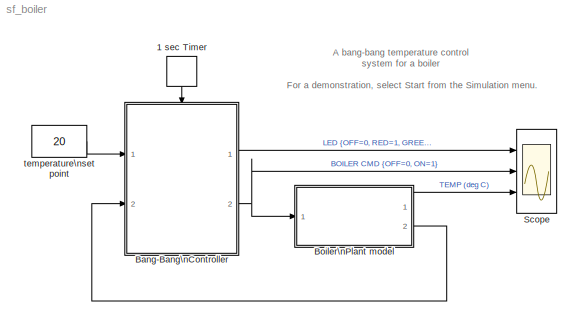
MODEL sf_boiler
KIND model
BLOCK [DiscretePulseGenerator] 1 sec Timer
  Amplitude = int8(1)
  Ports = [0, 1]
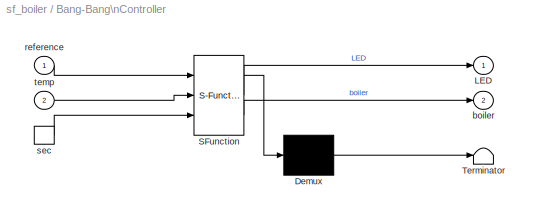
BLOCK [SubSystem] Bang-Bang\nController
  MaskDescription = Stateflow diagram
  MaskDisplay = plot(sf('Private','sfblk','xIcon'),sf('Private','sfblk','yIcon'));text(0.5,0,sf('Private', 'sfblk', 'tIcon'),'HorizontalAl','Center','VerticalAl','Bottom');
  MaskIconFrame = off
  MaskIconOpaque = off
  MaskIconRotate = none
  MaskIconUnits = autoscale
  MaskSelfModifiable = on
  MaskType = Stateflow
  MinAlgLoopOccurrences = off
  Ports = [2, 2, 0, 1]
  PropExecContextAcrossSSBoundary = on
  RTWSystemCode = Auto
  TreatAsAtomicUnit = on
BLOCK [Demux] Bang-Bang\nController/ Demux 
  Outputs = 1
  Ports = [1, 1]
BLOCK [S-Function] Bang-Bang\nController/ SFunction 
  FunctionName = sf_sfun
  PortCounts = [3 3]
  Ports = [3, 3]
  Tag = Stateflow S-Function sf_boiler 7
BLOCK [Terminator] Bang-Bang\nController/ Terminator 
BLOCK [Outport] Bang-Bang\nController/LED
  IconDisplay = Port number
BLOCK [Outport] Bang-Bang\nController/boiler
  IconDisplay = Port number
  Port = 2
BLOCK [Inport] Bang-Bang\nController/reference
  IconDisplay = Port number
  LatchInput = off
  Port = 1
BLOCK [TriggerPort] Bang-Bang\nController/sec
  Ports = [0, 1]
  ShowOutputPort = on
  ZeroCross = off
BLOCK [Inport] Bang-Bang\nController/temp
  IconDisplay = Port number
  LatchInput = off
  Port = 2
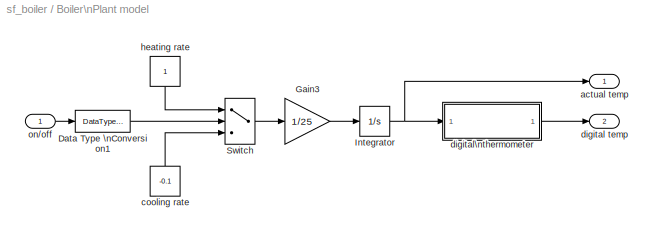
BLOCK [SubSystem] Boiler\nPlant model
  MinAlgLoopOccurrences = off
  Ports = [1, 2]
  PropExecContextAcrossSSBoundary = on
  RTWSystemCode = Auto
  TreatAsAtomicUnit = off
BLOCK [DataTypeConversion] Boiler\nPlant model/Data Type \nConversion1
  OutDataTypeMode = boolean
BLOCK [Gain] Boiler\nPlant model/Gain3
  Gain = 1/25
BLOCK [Integrator] Boiler\nPlant model/Integrator
  InitialCondition = 15
  Ports = [1, 1]
  ZeroCross = off
BLOCK [Switch] Boiler\nPlant model/Switch
  Threshold = .5
BLOCK [Outport] Boiler\nPlant model/actual temp
  IconDisplay = Port number
BLOCK [Constant] Boiler\nPlant model/cooling rate
  Value = -0.1
BLOCK [Outport] Boiler\nPlant model/digital temp
  IconDisplay = Port number
  Port = 2
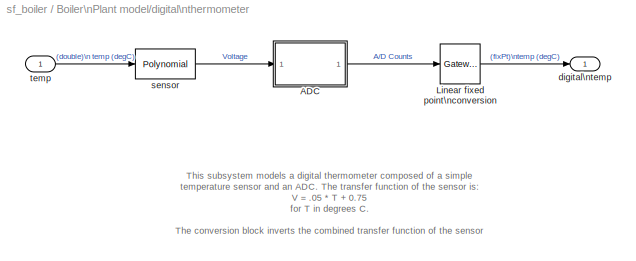
BLOCK [SubSystem] Boiler\nPlant model/digital\nthermometer
  MinAlgLoopOccurrences = off
  Ports = [1, 1]
  PropExecContextAcrossSSBoundary = on
  RTWSystemCode = Auto
  TreatAsAtomicUnit = off
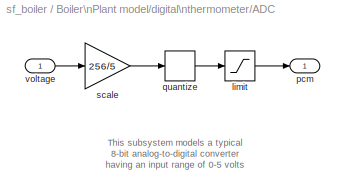
BLOCK [SubSystem] Boiler\nPlant model/digital\nthermometer/ADC
  MaskDisplay = fprintf('ADC\\n8-bit\\n0-5V');\n
  MaskIconFrame = on
  MaskIconOpaque = on
  MaskIconRotate = none
  MaskIconUnits = autoscale
  MinAlgLoopOccurrences = off
  Ports = [1, 1]
  PropExecContextAcrossSSBoundary = on
  RTWSystemCode = Auto
  ShowPortLabels = off
  TreatAsAtomicUnit = off
BLOCK [Saturate] Boiler\nPlant model/digital\nthermometer/ADC/limit
  LowerLimit = 0
  UpperLimit = 255
BLOCK [Outport] Boiler\nPlant model/digital\nthermometer/ADC/pcm
  IconDisplay = Port number
BLOCK [Quantizer] Boiler\nPlant model/digital\nthermometer/ADC/quantize
  QuantizationInterval = 1
BLOCK [Gain] Boiler\nPlant model/digital\nthermometer/ADC/scale
  Gain = 256/5
BLOCK [Inport] Boiler\nPlant model/digital\nthermometer/ADC/voltage
  IconDisplay = Port number
  LatchInput = off
  Port = 1
BLOCK [Reference] Boiler\nPlant model/digital\nthermometer/Linear fixed point\nconversion  REF=fixpt_lib_4/Data Type/Gateway In  (lib defined in mdl_ef9dacb0d1df)
  DoSatur = off
  InRealWorld = Stored Integer
  LockScale = off
  OutDataType = sfix(8)
  OutScaling = [ 5/256/0.05     -0.75/0.05 ]
  OutputDataTypeScalingMode = Specify via dialog
  Ports = [1, 1]
  RndMeth = Floor
  SourceBlock = fixpt_lib_4/Data Type/Gateway In
  SourceType = Fixed-Point Gateway In
BLOCK [Outport] Boiler\nPlant model/digital\nthermometer/digital\ntemp
  IconDisplay = Port number
BLOCK [Reference] Boiler\nPlant model/digital\nthermometer/sensor  REF=simulink/Math\nOperations/Polynomial
  Ports = [1, 1]
  SourceBlock = simulink/Math\nOperations/Polynomial
  SourceType = Polyval
  coefs = [ 0.05     0.75 ]
BLOCK [Inport] Boiler\nPlant model/digital\nthermometer/temp
  IconDisplay = Port number
  LatchInput = off
  Port = 1
BLOCK [Constant] Boiler\nPlant model/heating rate
BLOCK [Inport] Boiler\nPlant model/on//off
  IconDisplay = Port number
  LatchInput = off
  Port = 1
BLOCK [Scope] Scope
  DataFormat = StructureWithTime
  NumInputPorts = 3
  Ports = [3]
  YMax = 2~1~24
  YMin = 0~0~15
BLOCK [Constant] temperature\nset point
  OutDataTypeMode = Inherit via back propagation
  Value = 20
ANNOTATION (root): A bang-bang temperature control\nsystem for a boiler
ANNOTATION (root): For a demonstration, select Start from the Simulation menu.
ANNOTATION Boiler\nPlant model/digital\nthermometer: This subsystem models a digital thermometer composed of a simple \ntemperature sensor and an ADC. The transfer function of the sensor is:\nV = .05 * T + 0.75\nfor T in degrees C. \n\nThe conversion block inverts the combined transfer function of the sensor \nand ADC so that the output is an sfix(8) code representing T in degrees C.
ANNOTATION Boiler\nPlant model/digital\nthermometer/ADC: This subsystem models a typical \n8-bit analog-to-digital converter\nhaving an input range of 0-5 volts
LINE 1 sec Timer:1 -> Bang-Bang\nController:trigger
LINE Bang-Bang\nController/ Demux :1 -> Bang-Bang\nController/ Terminator :1
LINE Bang-Bang\nController/ SFunction :1 -> Bang-Bang\nController/ Demux :1
LINE Bang-Bang\nController/ SFunction :2 -> Bang-Bang\nController/LED:1
LINE Bang-Bang\nController/ SFunction :3 -> Bang-Bang\nController/boiler:1
LINE Bang-Bang\nController/reference:1 -> Bang-Bang\nController/ SFunction :1
LINE Bang-Bang\nController/sec:1 -> Bang-Bang\nController/ SFunction :3
LINE Bang-Bang\nController/temp:1 -> Bang-Bang\nController/ SFunction :2
LINE Bang-Bang\nController:1 -> Scope:1
NET Bang-Bang\nController:2 -> Boiler\nPlant model:1, Scope:2
LINE Boiler\nPlant model/Data Type \nConversion1:1 -> Boiler\nPlant model/Switch:2
LINE Boiler\nPlant model/Gain3:1 -> Boiler\nPlant model/Integrator:1
NET Boiler\nPlant model/Integrator:1 -> Boiler\nPlant model/actual temp:1, Boiler\nPlant model/digital\nthermometer:1
LINE Boiler\nPlant model/Switch:1 -> Boiler\nPlant model/Gain3:1
LINE Boiler\nPlant model/cooling rate:1 -> Boiler\nPlant model/Switch:3
LINE Boiler\nPlant model/digital\nthermometer/ADC/limit:1 -> Boiler\nPlant model/digital\nthermometer/ADC/pcm:1
LINE Boiler\nPlant model/digital\nthermometer/ADC/quantize:1 -> Boiler\nPlant model/digital\nthermometer/ADC/limit:1
LINE Boiler\nPlant model/digital\nthermometer/ADC/scale:1 -> Boiler\nPlant model/digital\nthermometer/ADC/quantize:1
LINE Boiler\nPlant model/digital\nthermometer/ADC/voltage:1 -> Boiler\nPlant model/digital\nthermometer/ADC/scale:1
LINE Boiler\nPlant model/digital\nthermometer/ADC:1 -> Boiler\nPlant model/digital\nthermometer/Linear fixed point\nconversion:1
LINE Boiler\nPlant model/digital\nthermometer/Linear fixed point\nconversion:1 -> Boiler\nPlant model/digital\nthermometer/digital\ntemp:1
LINE Boiler\nPlant model/digital\nthermometer/sensor:1 -> Boiler\nPlant model/digital\nthermometer/ADC:1
LINE Boiler\nPlant model/digital\nthermometer/temp:1 -> Boiler\nPlant model/digital\nthermometer/sensor:1
LINE Boiler\nPlant model/digital\nthermometer:1 -> Boiler\nPlant model/digital temp:1
LINE Boiler\nPlant model/heating rate:1 -> Boiler\nPlant model/Switch:1
LINE Boiler\nPlant model/on//off:1 -> Boiler\nPlant model/Data Type \nConversion1:1
LINE Boiler\nPlant model:1 -> Scope:3
LINE Boiler\nPlant model:2 -> Bang-Bang\nController:2
LINE temperature\nset point:1 -> Bang-Bang\nController:1
note: NET lines group one-source signal fan-out (src -> all destinations, sorted); 1:1 wires keep LINE
CHART Bang-Bang\nController states=9 transitions=21
  STATE_LABEL 'Heater'
  STATE_LABEL 'Off\\nentry: turn_boiler(OFF)\\non every(5,sec): flash_LED()'
  STATE_LABEL 'On\\nen: turn_boiler(ON)\\ndu: flash_LED()'
  STATE_LABEL 'flash_LED()'
  STATE_LABEL 'turn_boiler(mode)'
  STATE_LABEL 'b = cold()'
  STATE_LABEL 'HIGH'
  STATE_LABEL 'NORM'
  STATE_LABEL 'b = warm()'
